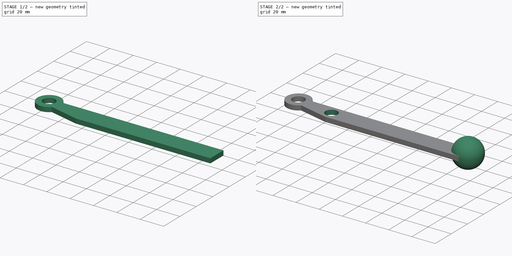
[diagram: build sequence overview — one tinted view per stage of 2, left to right]
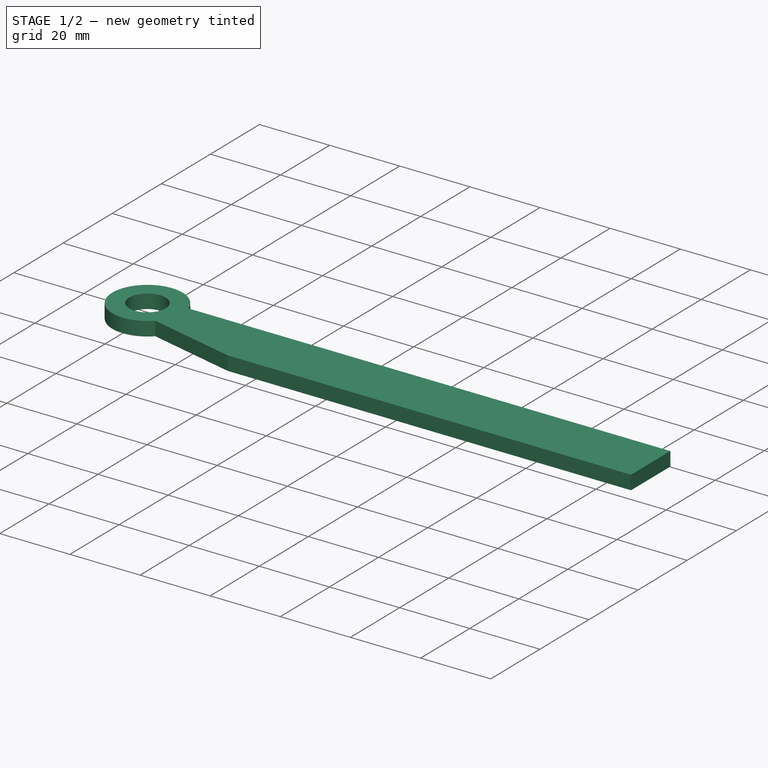
[diagram: stage 1 of 2 — iso view after this stage's code; geometry added in this stage tinted green]
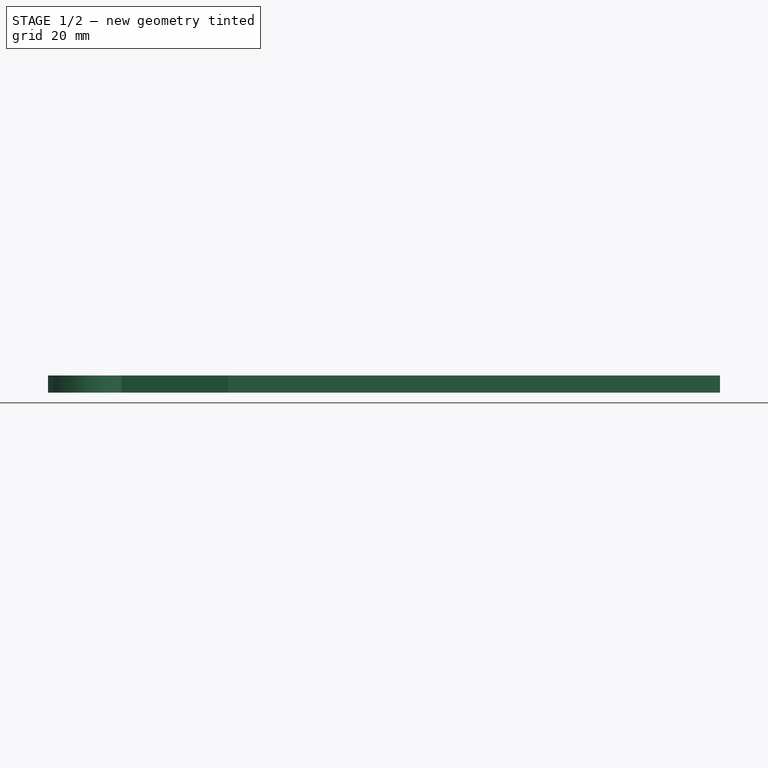
[diagram: stage 1 of 2 — front view after this stage's code; geometry added in this stage tinted green]
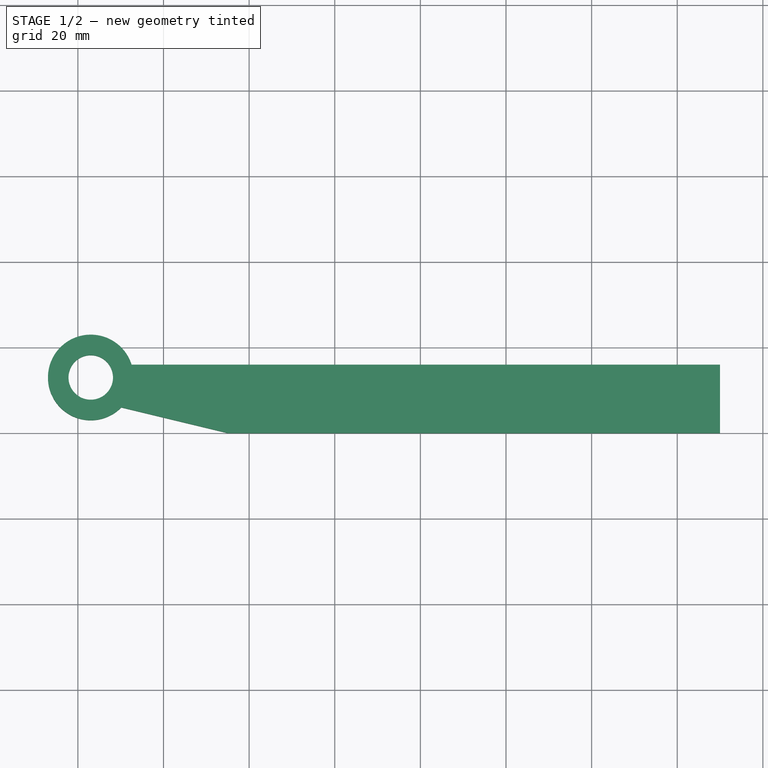
[diagram: stage 1 of 2 — top view after this stage's code; geometry added in this stage tinted green]
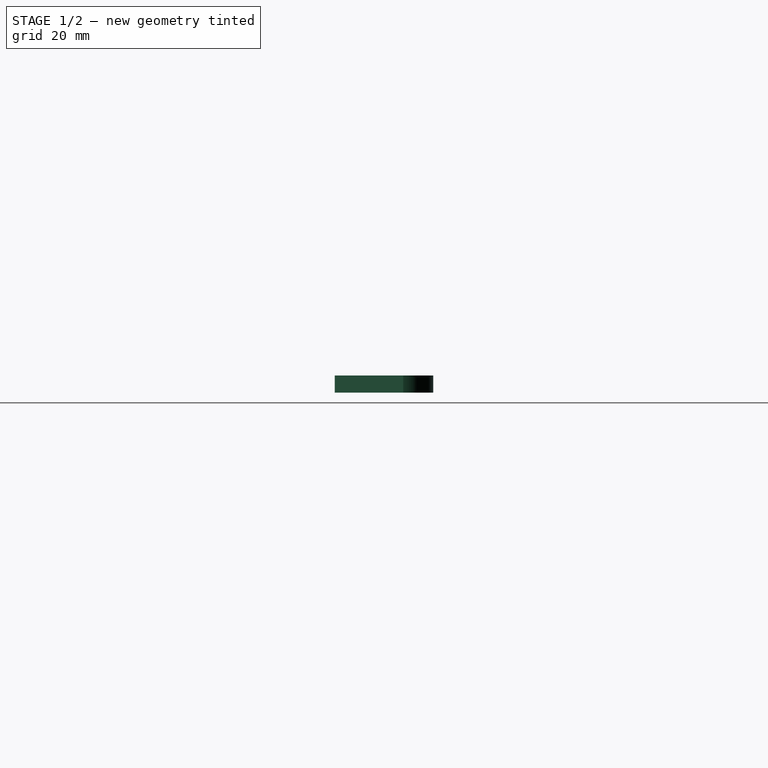
[diagram: stage 1 of 2 — right view after this stage's code; geometry added in this stage tinted green]
FCSTD DOCUMENT  (FreeCAD 0.21R33694 (Git))
Label: calfFeet
License: All rights reserved
LicenseURL: http://en.wikipedia.org/wiki/All_rights_reserved
objects: Sketcher::SketchObject×3, PartDesign::Pocket×2, PartDesign::Pad×1, PartDesign::AdditiveSphere×1, PartDesign::Body×1
note: 12 computed .brp shape members not serialized (recipe doc carries the construction recipe); baked Part::Feature solids carry a one-line shape summary decoded from their .brp

FEATURE [Sketcher::SketchObject] Sketch
  FullyConstrained = true
  MapMode = 5
  Support = -> [XY_Plane]
  sketch-geometry (8):
    g0: LineSegment StartX=0 StartY=10 StartZ=0 EndX=0 EndY=16 EndZ=0
    g1: LineSegment StartX=150 StartY=16 StartZ=0 EndX=150 EndY=0 EndZ=0
    g2: LineSegment StartX=150 StartY=0 StartZ=0 EndX=35 EndY=0 EndZ=0
    g3: LineSegment StartX=0 StartY=16 StartZ=0 EndX=12.5394 EndY=16 EndZ=0
    g4: LineSegment StartX=12.5394 StartY=16 StartZ=0 EndX=150 EndY=16 EndZ=0
    g5: LineSegment StartX=0 StartY=10 StartZ=0 EndX=10.1414 EndY=6 EndZ=0
    g6: LineSegment StartX=10.1414 StartY=6 StartZ=0 EndX=35 EndY=-3e-16 EndZ=0
    g7: ArcOfCircle CenterX=3 CenterY=13 CenterZ=0 NormalX=0 NormalY=0 NormalZ=1 AngleXU=0 Radius=10 StartAngle=0.304693 EndAngle=5.50779
  constraints (24):
    c: PointOnObject(g0,g-2)
    c: Coincident(g3,g0)
    c: Coincident(g1,g4)
    c: PointOnObject(g1,g-1)
    c: Vertical(g1)
    c: Coincident(g2,g1)
    c: DistanceY(g-1,g0) = 16
    c: DistanceX(g3,g4) = 150
    c: DistanceY(g5,g0) = 6
    c: Coincident(g2,g6)
    c: Coincident(g0,g5)
    c: DistanceY(g2,g1) = 0
    c: DistanceX(g0,g0) = 0
    c: DistanceX(g0,g2) = 35
    c: DistanceY(g-1,g7) = 13
    c: DistanceX(g-1,g7) = 3
    c: Coincident(g3,g4)
    c: Horizontal(g3)
    c: Horizontal(g4)
    c: Coincident(g5,g6)
    c: DistanceY(g-1,g5) = 6
    c: Radius(g7) = 10
    c: Coincident(g7,g4)
    c: Coincident(g7,g6)
FEATURE [PartDesign::Pad] Pad
  Direction = (0,0,1)
  Length = 4
  Length2 = 10
  Profile = -> Sketch
  ReferenceAxis = -> Sketch [N_Axis]
  Type = 0
FEATURE [Sketcher::SketchObject] Sketch001
  FullyConstrained = true
  MapMode = 5
  Placement = pos=(0,0,4) rot=(0,0,1;0rad)
  Support = -> [Pad]
  sketch-geometry (1):
    g0: Circle CenterX=3 CenterY=13 CenterZ=0 NormalX=0 NormalY=0 NormalZ=1 AngleXU=0 Radius=5.2
  constraints (3):
    c: Radius(g0) = 5.2
    c: DistanceX(g-1,g0) = 3
    c: DistanceY(g-1,g0) = 13
FEATURE [PartDesign::Pocket] Pocket
  BaseFeature = -> Pad
  Direction = (0,0,-1)
  Length = 5
  Length2 = 5
  Profile = -> Sketch001
  ReferenceAxis = -> Sketch001 [N_Axis]
  Type = 0
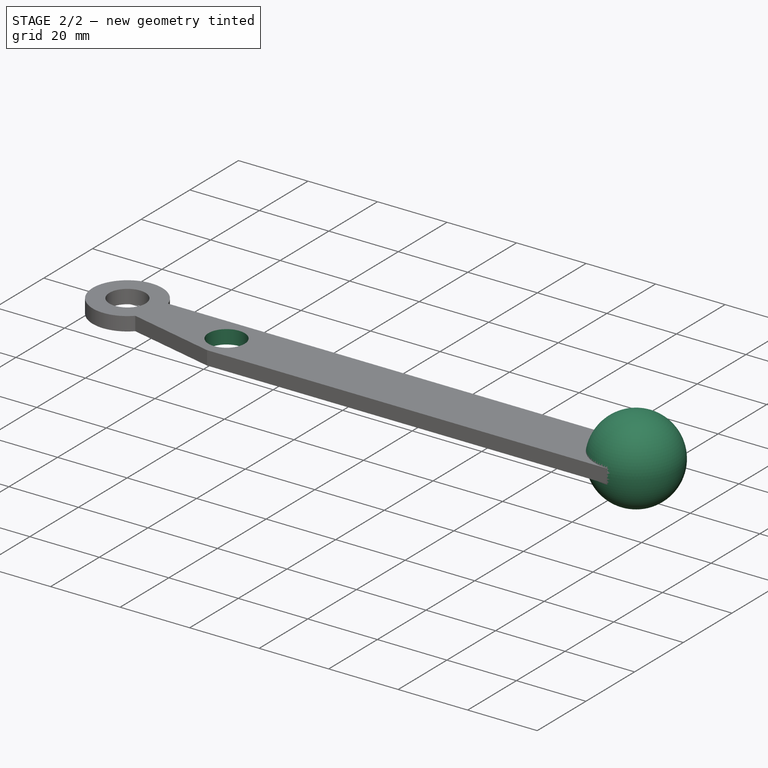
[diagram: stage 2 of 2 — iso view after this stage's code; geometry added in this stage tinted green]
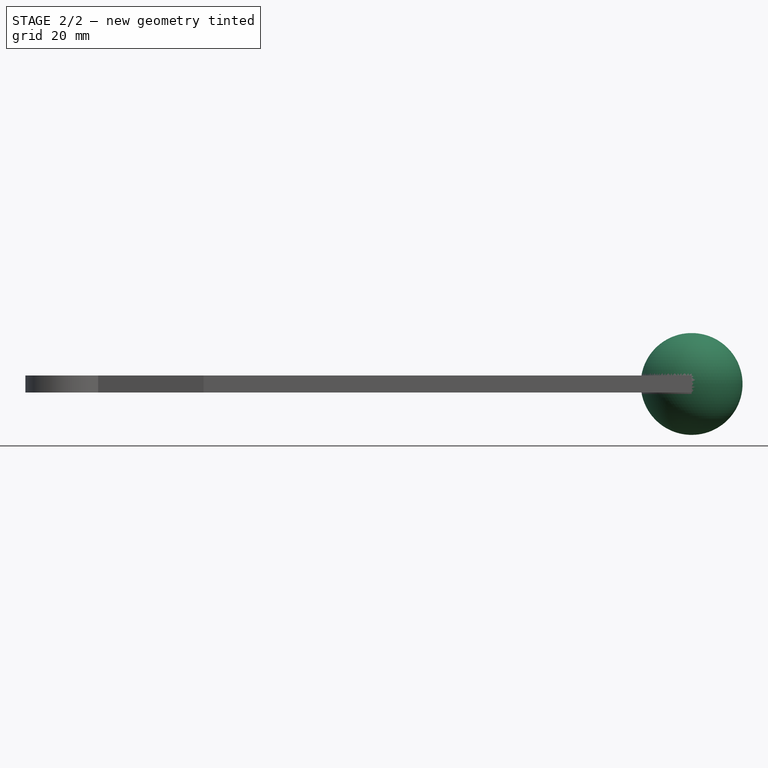
[diagram: stage 2 of 2 — front view after this stage's code; geometry added in this stage tinted green]
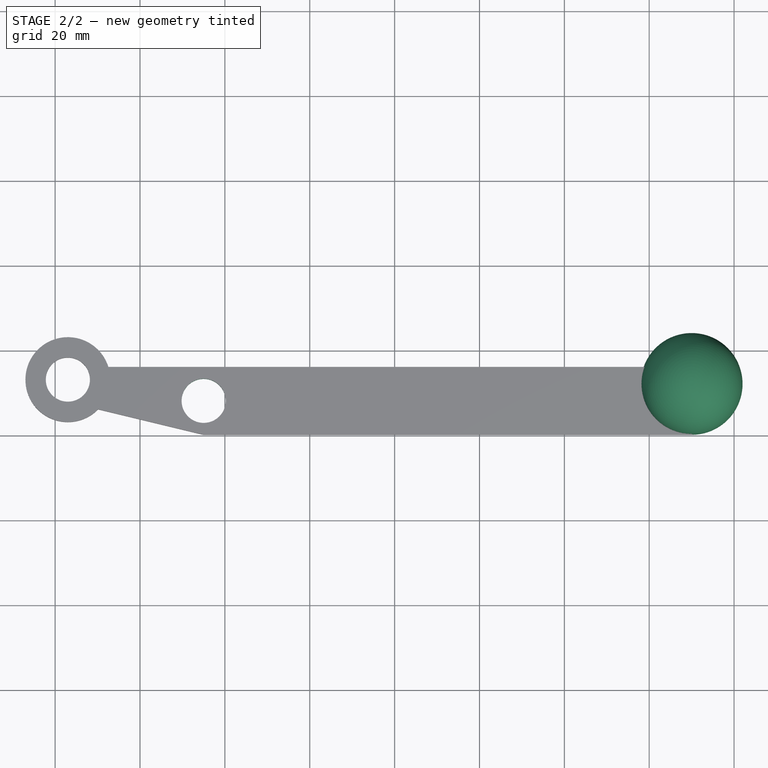
[diagram: stage 2 of 2 — top view after this stage's code; geometry added in this stage tinted green]
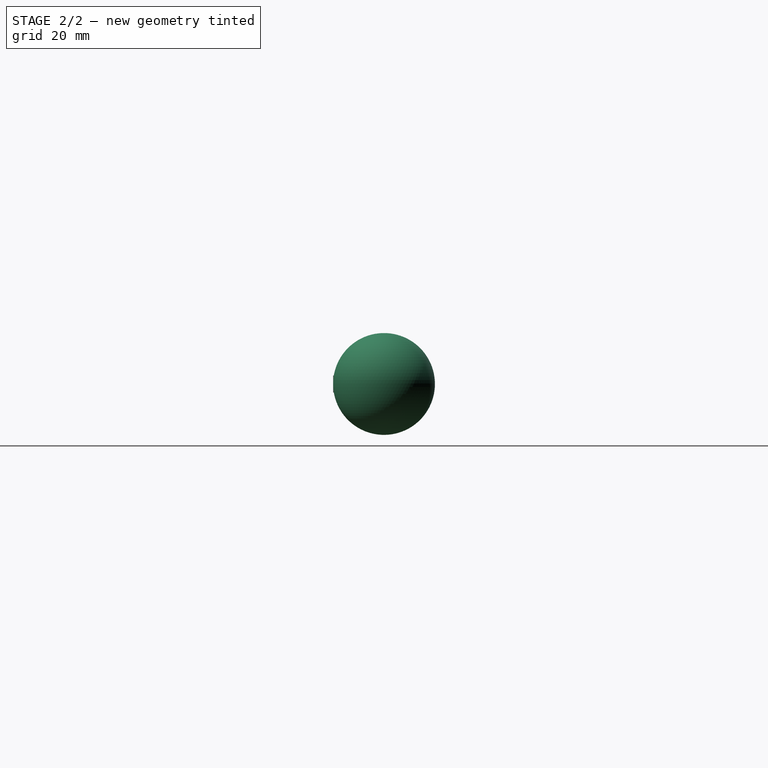
[diagram: stage 2 of 2 — right view after this stage's code; geometry added in this stage tinted green]
FEATURE [PartDesign::AdditiveSphere] Sphere
  Angle1 = -87
  Angle2 = 90
  Angle3 = 360
  AttacherType = Attacher::AttachEngine3D
  AttachmentOffset = pos=(0,12,-2) rot=(0,0,1;0rad)
  BaseFeature = -> Pocket
  MapMode = 7
  Placement = pos=(150,12,2) rot=(0,1,0;3.14159rad)
  Radius = 12
  Support = -> [Pocket]
FEATURE [Sketcher::SketchObject] Sketch002
  FullyConstrained = true
  MapMode = 5
  Placement = pos=(150,12,4) rot=(0,0,1;3.14159rad)
  Support = -> [Sphere]
  sketch-geometry (1):
    g0: Circle CenterX=115 CenterY=4 CenterZ=0 NormalX=0 NormalY=0 NormalZ=1 AngleXU=0 Radius=5.2
  constraints (3):
    c: Radius(g0) = 5.2
    c: DistanceX(g-1,g0) = 115
    c: DistanceY(g-1,g0) = 4
FEATURE [PartDesign::Pocket] Pocket001
  BaseFeature = -> Sphere
  Direction = (-1e-16,0,-1)
  Length = 5
  Length2 = 5
  Placement = pos=(150,12,2) rot=(0,1,0;3.14159rad)
  Profile = -> Sketch002
  ReferenceAxis = -> Sketch002 [N_Axis]
  Type = 0
FEATURE [PartDesign::Body] Body
  Group = -> [Sketch,Pad,Sketch001,Pocket,Sphere,Sketch002,Pocket001]
  Origin = -> Origin
  Tip = -> Pocket001
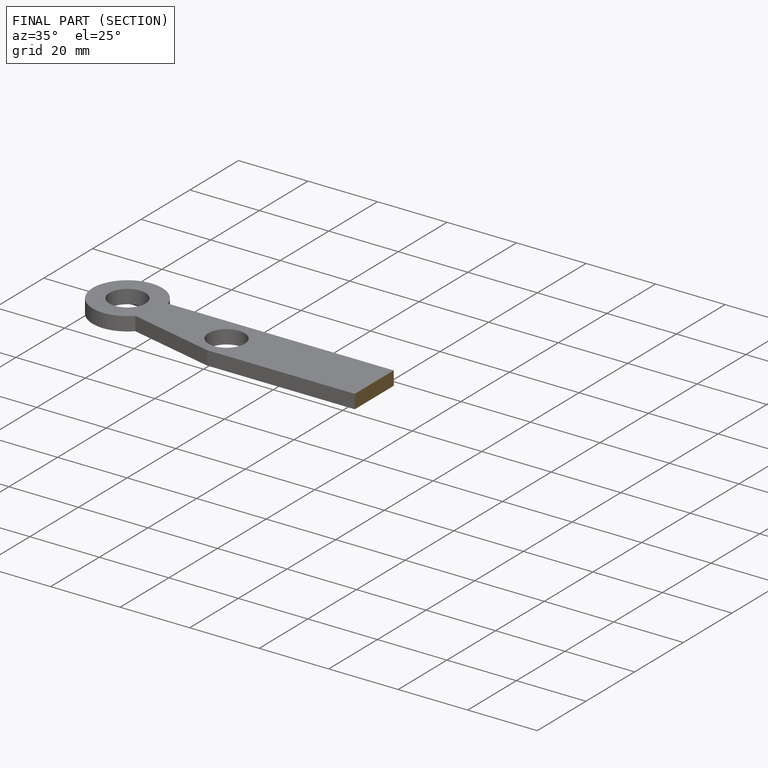
[diagram: finished part — half-section view (interior)]
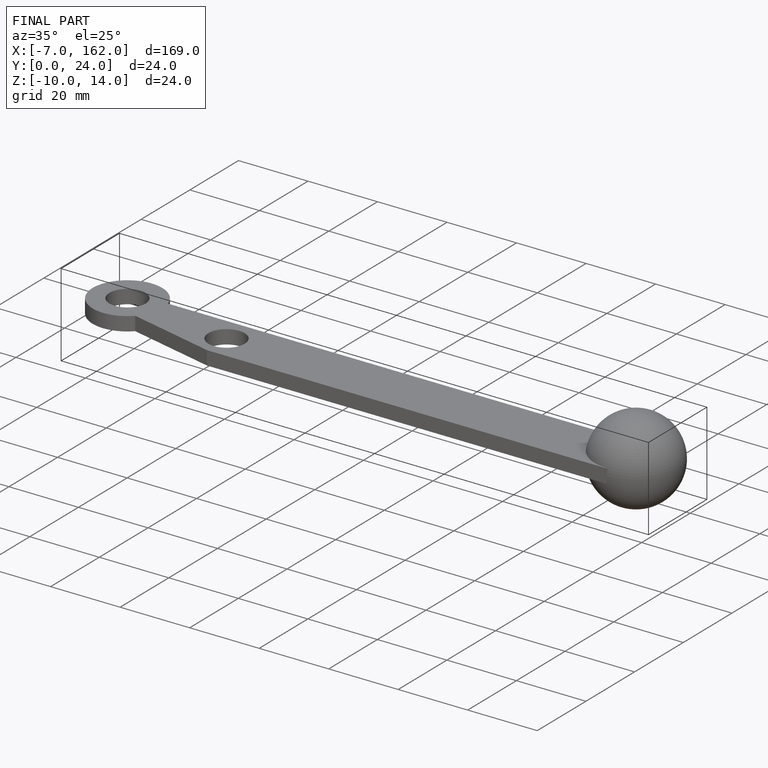
[diagram: finished part — iso view with bounding-box wireframe]
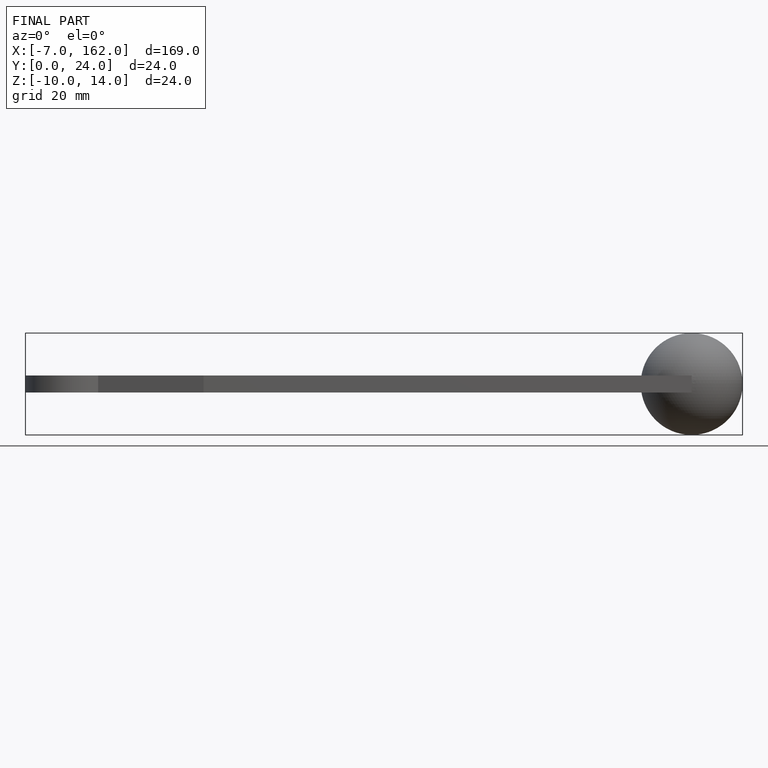
[diagram: finished part — front view with bounding-box wireframe]
